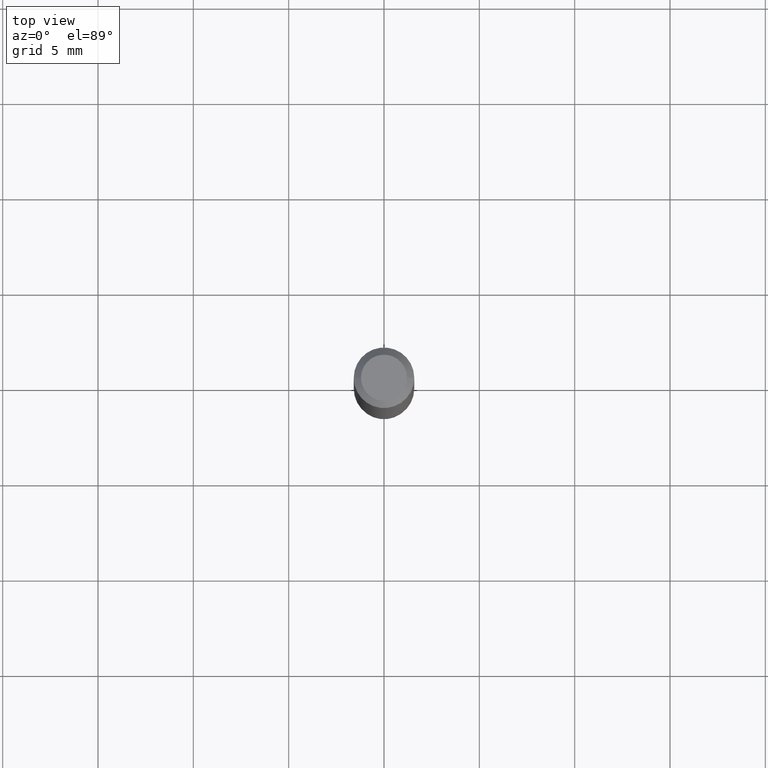
[diagram: clean part render]
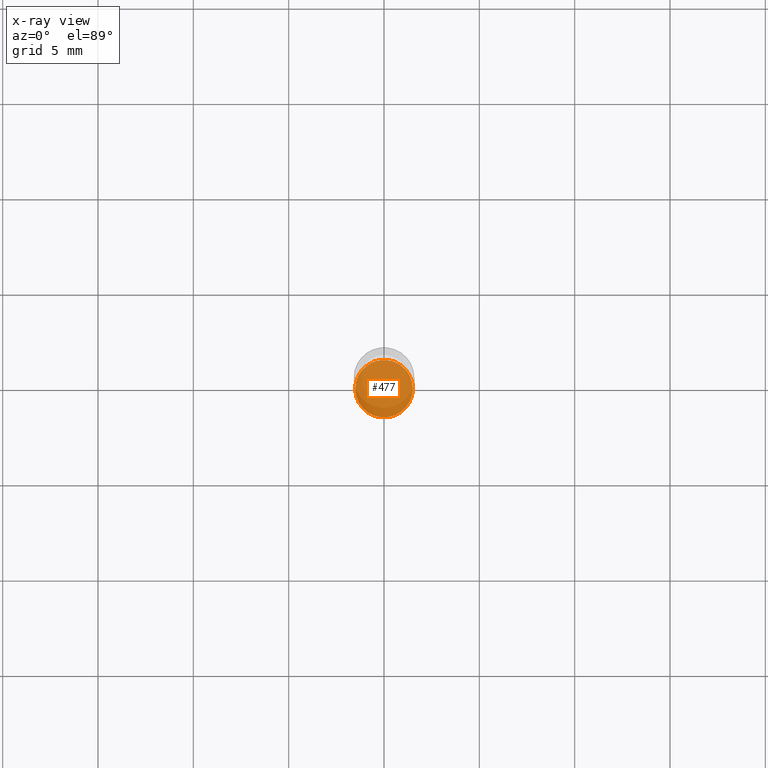
[diagram: x-ray — body ghosted, one internal face saturated and labeled with its STEP entity id]
A machine part, top view, then the same camera in x-ray: the body is ghosted and one INTERNAL B-rep face — a face not visible from any outside direction — is saturated and labeled: STEP entity #477.
In plain terms, the highlighted planar face has unit normal (-0, 0, 1).
Its self-contained STEP definition (entity closure, byte-faithful):
#6 = DIRECTION ( 'NONE',  ( -2.445468806185136597E-29, 3.491481338843145583E-15, 1.000000000000000000 ) ) ;
#31 = VERTEX_POINT ( 'NONE', #229 ) ;
#47 = ORIENTED_EDGE ( 'NONE', *, *, #358, .F. ) ;
#85 = AXIS2_PLACEMENT_3D ( 'NONE', #155, #286, #328 ) ;
#100 = AXIS2_PLACEMENT_3D ( 'NONE', #297, #457, #166 ) ;
#132 = EDGE_LOOP ( 'NONE', ( #459, #47 ) ) ;
#134 = FACE_OUTER_BOUND ( 'NONE', #132, .T. ) ;
#155 = CARTESIAN_POINT ( 'NONE',  ( 3.228018824164380442E-29, -4.608755367272952437E-15, -1.320000000000000062 ) ) ;
#166 = DIRECTION ( 'NONE',  ( 1.000000000000000000, -6.982962677686265922E-15, 4.876176775795935793E-29 ) ) ;
#197 = CARTESIAN_POINT ( 'NONE',  ( -0.05950000000000001815, -4.183333212321581645E-15, -1.320000000000000062 ) ) ;
#229 = CARTESIAN_POINT ( 'NONE',  ( 0.05950000000000001815, -5.024241646595286064E-15, -1.320000000000000062 ) ) ;
#240 = AXIS2_PLACEMENT_3D ( 'NONE', #364, #6, #485 ) ;
#249 = CIRCLE ( 'NONE', #85, 0.05950000000000001815 ) ;
#253 = EDGE_CURVE ( 'NONE', #31, #285, #249, .T. ) ;
#285 = VERTEX_POINT ( 'NONE', #197 ) ;
#286 = DIRECTION ( 'NONE',  ( -2.445468806185136597E-29, 3.491481338843145583E-15, 1.000000000000000000 ) ) ;
#297 = CARTESIAN_POINT ( 'NONE',  ( 3.228018824164380442E-29, -4.608755367272952437E-15, -1.320000000000000062 ) ) ;
#326 = CIRCLE ( 'NONE', #240, 0.05950000000000001815 ) ;
#328 = DIRECTION ( 'NONE',  ( 1.000000000000000000, -6.982962677686273810E-15, 0.000000000000000000 ) ) ;
#358 = EDGE_CURVE ( 'NONE', #285, #31, #326, .T. ) ;
#364 = CARTESIAN_POINT ( 'NONE',  ( 3.228018824164380442E-29, -4.608755367272952437E-15, -1.320000000000000062 ) ) ;
#457 = DIRECTION ( 'NONE',  ( -2.438088387897960049E-29, 3.491481338843145188E-15, 1.000000000000000000 ) ) ;
#459 = ORIENTED_EDGE ( 'NONE', *, *, #253, .F. ) ;
#477 = ADVANCED_FACE ( 'NONE', ( #134 ), #489, .F. ) ;
#485 = DIRECTION ( 'NONE',  ( 1.000000000000000000, -6.982962677686273810E-15, 0.000000000000000000 ) ) ;
#489 = PLANE ( 'NONE',  #100 ) ;